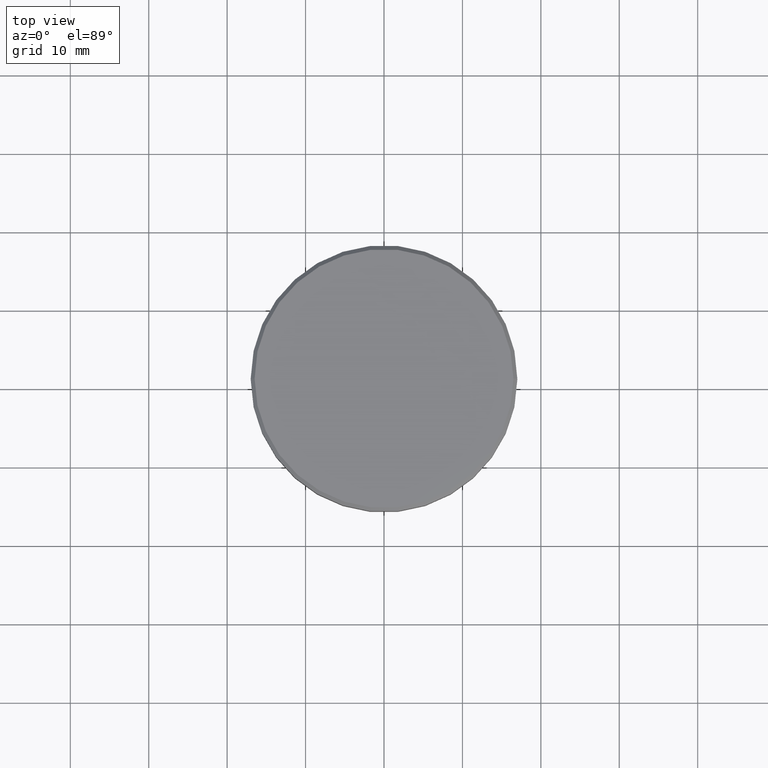
[diagram: clean part render]
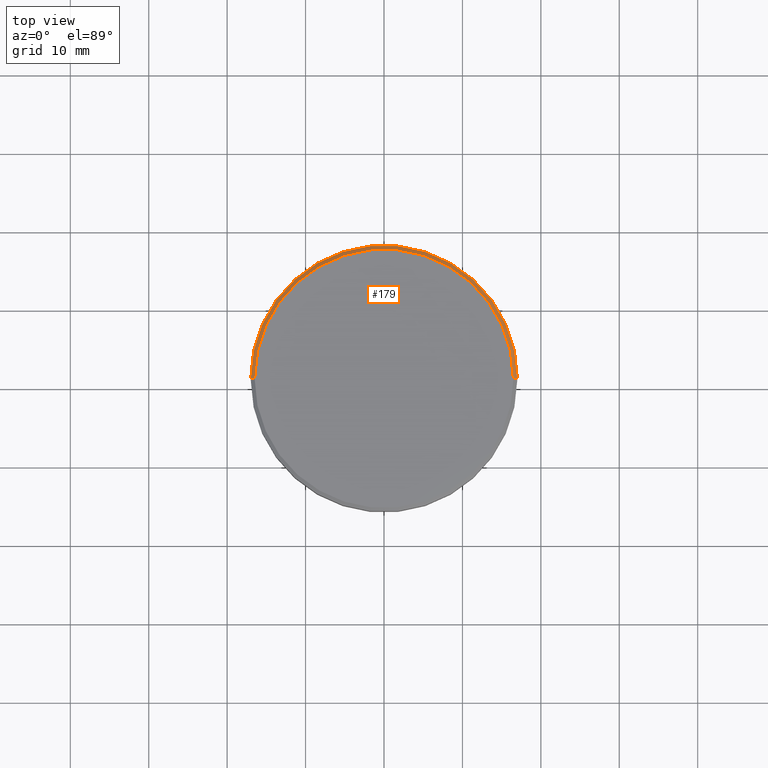
[diagram: same view with one face highlighted and labeled with its STEP entity id]
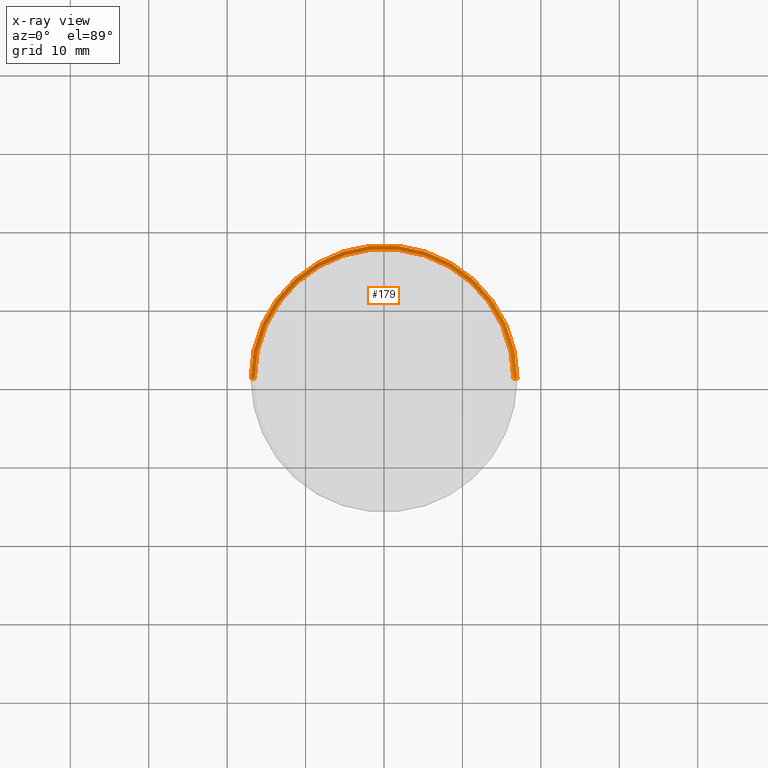
[diagram: x-ray of the same camera — body ghosted, the highlighted face saturated]
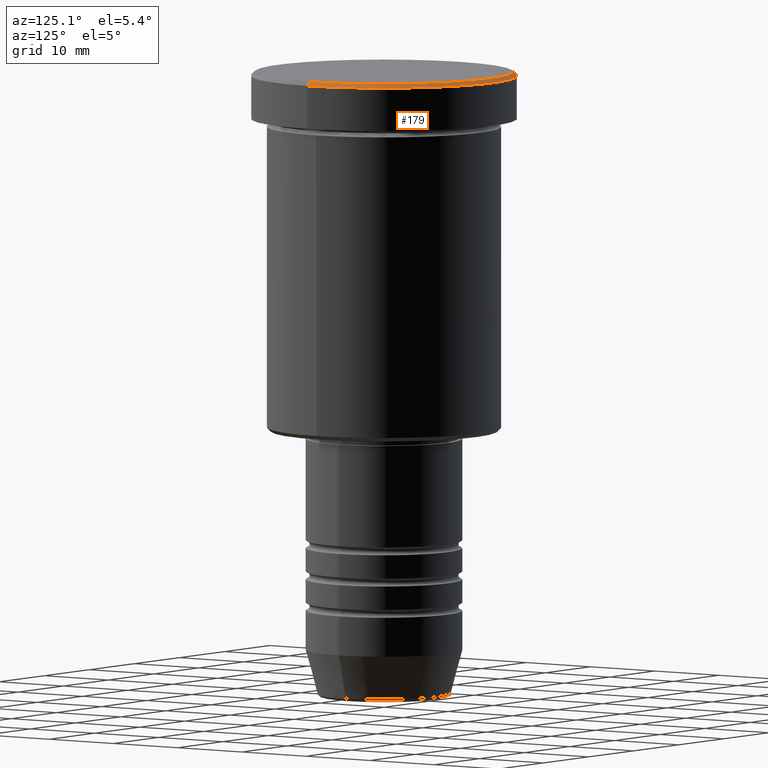
[diagram: same view with one face highlighted and labeled with its STEP entity id]
A machine part, top view. The second image highlights one B-rep face of the part: STEP entity #179.
The next image is the same camera in x-ray: the body ghosted, the highlighted face saturated — about 0% of this face is hidden behind the body in this view.
A second angle (auxiliary view) of the same face is appended — the face is thin or edge-on in the first view.
In plain terms, the highlighted conical surface has half-angle 45 deg.
Its self-contained STEP definition (entity closure, byte-faithful):
#37 = CONICAL_SURFACE ( 'NONE', #1009, 16.50000000000000000, 0.7853981633974415066 ) ;
#39 = DIRECTION ( 'NONE',  ( -0.7071067811865426878, 0.000000000000000000, -0.7071067811865524577 ) ) ;
#52 = VERTEX_POINT ( 'NONE', #89 ) ;
#55 = DIRECTION ( 'NONE',  ( 1.000000000000000000, 0.000000000000000000, 0.000000000000000000 ) ) ;
#73 = LINE ( 'NONE', #1003, #1144 ) ;
#89 = CARTESIAN_POINT ( 'NONE',  ( 16.50000000000000000, 2.051283388571816887E-15, 0.000000000000000000 ) ) ;
#106 = FACE_OUTER_BOUND ( 'NONE', #858, .T. ) ;
#111 = VERTEX_POINT ( 'NONE', #912 ) ;
#130 = CIRCLE ( 'NONE', #918, 17.00000000000000000 ) ;
#136 = EDGE_CURVE ( 'NONE', #505, #111, #130, .T. ) ;
#179 = ADVANCED_FACE ( 'NONE', ( #106 ), #37, .T. ) ;
#261 = CARTESIAN_POINT ( 'NONE',  ( 0.000000000000000000, 0.000000000000000000, -0.5000000000000073275 ) ) ;
#278 = CARTESIAN_POINT ( 'NONE',  ( -16.50000000000000000, 0.000000000000000000, 0.000000000000000000 ) ) ;
#306 = CARTESIAN_POINT ( 'NONE',  ( -16.50000000000000000, 0.000000000000000000, 0.000000000000000000 ) ) ;
#350 = CIRCLE ( 'NONE', #1011, 16.50000000000000000 ) ;
#401 = EDGE_CURVE ( 'NONE', #52, #491, #350, .T. ) ;
#476 = DIRECTION ( 'NONE',  ( 0.000000000000000000, 0.000000000000000000, -1.000000000000000000 ) ) ;
#490 = DIRECTION ( 'NONE',  ( 1.000000000000000000, 0.000000000000000000, 0.000000000000000000 ) ) ;
#491 = VERTEX_POINT ( 'NONE', #278 ) ;
#505 = VERTEX_POINT ( 'NONE', #930 ) ;
#553 = ORIENTED_EDGE ( 'NONE', *, *, #875, .T. ) ;
#725 = EDGE_CURVE ( 'NONE', #491, #505, #1043, .T. ) ;
#727 = ORIENTED_EDGE ( 'NONE', *, *, #401, .F. ) ;
#858 = EDGE_LOOP ( 'NONE', ( #727, #553, #1071, #929 ) ) ;
#875 = EDGE_CURVE ( 'NONE', #52, #111, #73, .T. ) ;
#879 = CARTESIAN_POINT ( 'NONE',  ( 0.000000000000000000, 0.000000000000000000, 0.000000000000000000 ) ) ;
#898 = DIRECTION ( 'NONE',  ( 0.000000000000000000, 0.000000000000000000, -1.000000000000000000 ) ) ;
#912 = CARTESIAN_POINT ( 'NONE',  ( 17.00000000000000000, 0.000000000000000000, -0.5000000000000073275 ) ) ;
#918 = AXIS2_PLACEMENT_3D ( 'NONE', #261, #898, #490 ) ;
#927 = CARTESIAN_POINT ( 'NONE',  ( 0.000000000000000000, 0.000000000000000000, 0.000000000000000000 ) ) ;
#929 = ORIENTED_EDGE ( 'NONE', *, *, #725, .F. ) ;
#930 = CARTESIAN_POINT ( 'NONE',  ( -17.00000000000000000, 2.081899558550500280E-15, -0.5000000000000073275 ) ) ;
#1003 = CARTESIAN_POINT ( 'NONE',  ( 16.50000000000000000, 2.020667218593133100E-15, 0.000000000000000000 ) ) ;
#1009 = AXIS2_PLACEMENT_3D ( 'NONE', #927, #476, #1021 ) ;
#1011 = AXIS2_PLACEMENT_3D ( 'NONE', #879, #1132, #55 ) ;
#1012 = VECTOR ( 'NONE', #39, 1000.000000000000000 ) ;
#1021 = DIRECTION ( 'NONE',  ( -1.000000000000000000, 0.000000000000000000, 0.000000000000000000 ) ) ;
#1043 = LINE ( 'NONE', #306, #1012 ) ;
#1071 = ORIENTED_EDGE ( 'NONE', *, *, #136, .F. ) ;
#1132 = DIRECTION ( 'NONE',  ( -0.000000000000000000, -0.000000000000000000, 1.000000000000000000 ) ) ;
#1144 = VECTOR ( 'NONE', #1183, 1000.000000000000000 ) ;
#1183 = DIRECTION ( 'NONE',  ( 0.7071067811865426878, 8.659560562354874926E-17, -0.7071067811865524577 ) ) ;